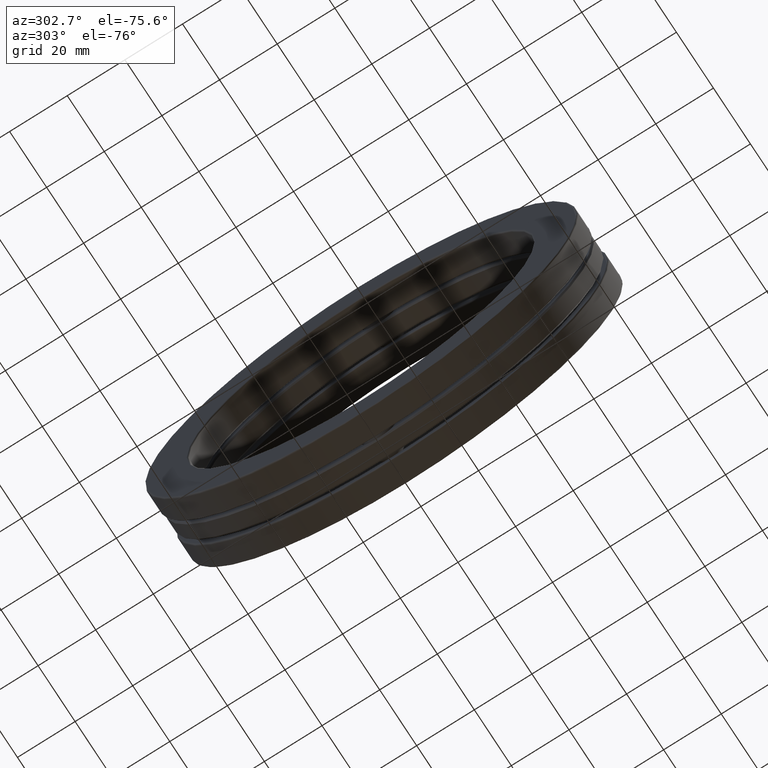
[diagram: clean part render]
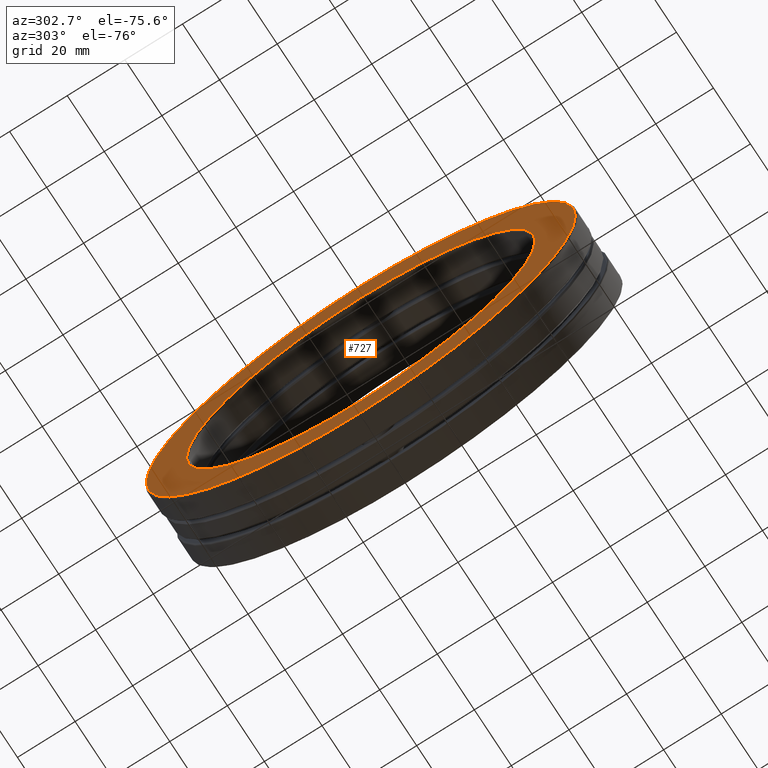
[diagram: same view with one face highlighted and labeled with its STEP entity id]
A machine part, auxiliary view. The second image highlights one B-rep face of the part: STEP entity #727.
In plain terms, the highlighted planar face has unit normal (1, 0, 0).
Its self-contained STEP definition (entity closure, byte-faithful):
#8 = EDGE_LOOP ( 'NONE', ( #462 ) ) ;
#14 = CARTESIAN_POINT ( 'NONE',  ( -0.4919999999999998300, 0.0000000000000000000, 0.0000000000000000000 ) ) ;
#38 = DIRECTION ( 'NONE',  ( 0.0000000000000000000, 0.0000000000000000000, 1.000000000000000000 ) ) ;
#149 = VERTEX_POINT ( 'NONE', #498 ) ;
#218 = FACE_BOUND ( 'NONE', #8, .T. ) ;
#229 = DIRECTION ( 'NONE',  ( 1.000000000000000000, 0.0000000000000000000, 0.0000000000000000000 ) ) ;
#244 = CIRCLE ( 'NONE', #773, 2.381999999999999700 ) ;
#261 = CIRCLE ( 'NONE', #782, 2.932999999999999400 ) ;
#328 = EDGE_CURVE ( 'NONE', #457, #457, #261, .T. ) ;
#352 = DIRECTION ( 'NONE',  ( 0.0000000000000000000, 0.0000000000000000000, -1.000000000000000000 ) ) ;
#371 = DIRECTION ( 'NONE',  ( -1.000000000000000000, -0.0000000000000000000, -0.0000000000000000000 ) ) ;
#391 = ORIENTED_EDGE ( 'NONE', *, *, #328, .T. ) ;
#446 = DIRECTION ( 'NONE',  ( 0.0000000000000000000, 0.0000000000000000000, 1.000000000000000000 ) ) ;
#457 = VERTEX_POINT ( 'NONE', #501 ) ;
#462 = ORIENTED_EDGE ( 'NONE', *, *, #517, .F. ) ;
#486 = PLANE ( 'NONE',  #710 ) ;
#498 = CARTESIAN_POINT ( 'NONE',  ( -0.4919999999999998300, 0.0000000000000000000, 2.381999999999999700 ) ) ;
#501 = CARTESIAN_POINT ( 'NONE',  ( -0.4919999999999998300, 0.0000000000000000000, 2.932999999999999400 ) ) ;
#502 = CARTESIAN_POINT ( 'NONE',  ( -0.4919999999999998300, 0.0000000000000000000, 0.0000000000000000000 ) ) ;
#517 = EDGE_CURVE ( 'NONE', #149, #149, #244, .T. ) ;
#537 = EDGE_LOOP ( 'NONE', ( #391 ) ) ;
#567 = CARTESIAN_POINT ( 'NONE',  ( -0.4919999999999998300, 0.0000000000000000000, 0.0000000000000000000 ) ) ;
#684 = FACE_OUTER_BOUND ( 'NONE', #537, .T. ) ;
#710 = AXIS2_PLACEMENT_3D ( 'NONE', #14, #229, #352 ) ;
#727 = ADVANCED_FACE ( 'NONE', ( #218, #684 ), #486, .F. ) ;
#773 = AXIS2_PLACEMENT_3D ( 'NONE', #567, #812, #446 ) ;
#782 = AXIS2_PLACEMENT_3D ( 'NONE', #502, #371, #38 ) ;
#812 = DIRECTION ( 'NONE',  ( -1.000000000000000000, -0.0000000000000000000, -0.0000000000000000000 ) ) ;